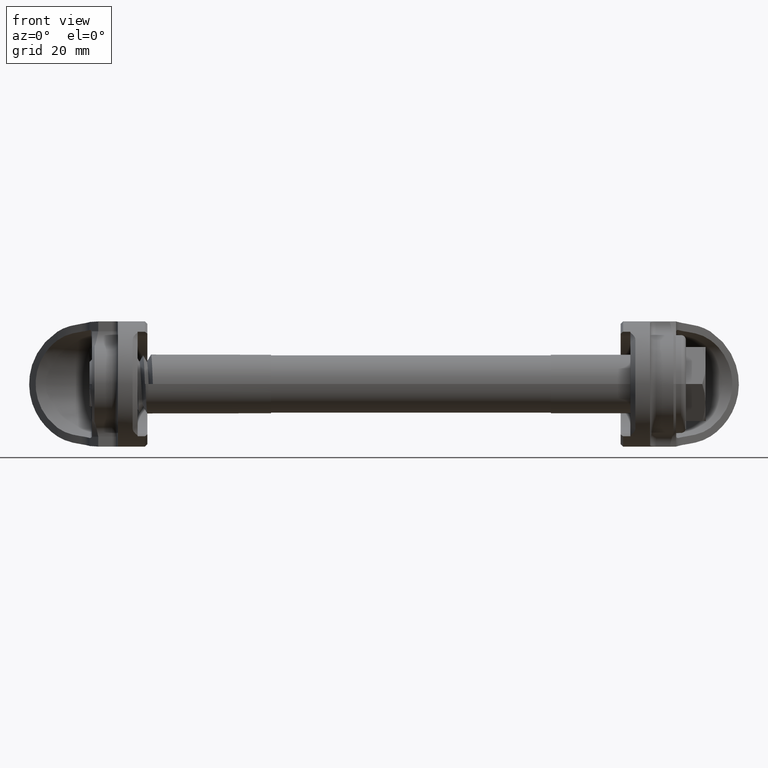
[diagram: clean part render]
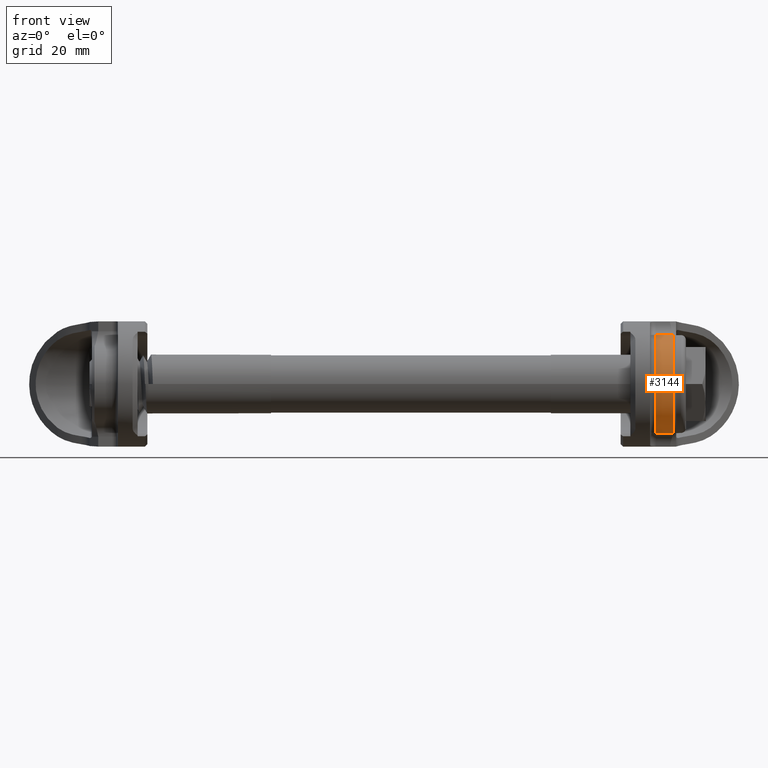
[diagram: same view with one face highlighted and labeled with its STEP entity id]
A machine part, front view. The second image highlights one B-rep face of the part: STEP entity #3144.
In plain terms, the highlighted cylindrical surface (partial cylindrical patch) has radius 10.5 mm, axis along (1, 0, 0).
Its self-contained STEP definition (entity closure, byte-faithful):
#41 = LINE ( 'NONE', #4312, #2883 ) ;
#180 = CARTESIAN_POINT ( 'NONE',  ( 10.74243408912959400, -3.447186338017333500, 9.918009192927106800 ) ) ;
#246 = CYLINDRICAL_SURFACE ( 'NONE', #5355, 10.49999999999999800 ) ;
#270 = FACE_OUTER_BOUND ( 'NONE', #2919, .T. ) ;
#352 = DIRECTION ( 'NONE',  ( -1.000000000000000000, -0.0000000000000000000, -0.0000000000000000000 ) ) ;
#372 = ORIENTED_EDGE ( 'NONE', *, *, #3410, .T. ) ;
#376 = LINE ( 'NONE', #4740, #446 ) ;
#446 = VECTOR ( 'NONE', #3868, 1000.000000000000000 ) ;
#518 = EDGE_CURVE ( 'NONE', #3356, #1215, #1852, .T. ) ;
#610 = CARTESIAN_POINT ( 'NONE',  ( 10.74243408912959600, -8.557028004780100600, -6.085003839391467800 ) ) ;
#709 = CIRCLE ( 'NONE', #4172, 10.49999999999999800 ) ;
#721 = EDGE_CURVE ( 'NONE', #986, #1077, #709, .T. ) ;
#955 = CARTESIAN_POINT ( 'NONE',  ( 10.74243408912959200, -10.33971421894304800, -2.110438373926082800 ) ) ;
#986 = VERTEX_POINT ( 'NONE', #2572 ) ;
#1077 = VERTEX_POINT ( 'NONE', #2967 ) ;
#1215 = VERTEX_POINT ( 'NONE', #1908 ) ;
#1317 = B_SPLINE_CURVE_WITH_KNOTS ( 'NONE', 3,
 ( #3625, #5477, #5404, #3604, #4010, #610 ),
 .UNSPECIFIED., .F., .F.,
 ( 4, 2, 4 ),
 ( 0.0000000000000000000, 0.4999999999999998900, 1.000000000000000000 ),
 .UNSPECIFIED. ) ;
#1852 = B_SPLINE_CURVE_WITH_KNOTS ( 'NONE', 3,
 ( #4839, #2325, #3142, #4007 ),
 .UNSPECIFIED., .F., .F.,
 ( 4, 4 ),
 ( 0.0000000000000000000, 1.000000000000000000 ),
 .UNSPECIFIED. ) ;
#1908 = CARTESIAN_POINT ( 'NONE',  ( 10.74243408912959400, -10.02633039180624900, -3.118124255757268600 ) ) ;
#1991 = DIRECTION ( 'NONE',  ( 1.000000000000000000, -0.0000000000000000000, -0.0000000000000000000 ) ) ;
#2062 = DIRECTION ( 'NONE',  ( 0.0000000000000000000, 0.0000000000000000000, 1.000000000000000000 ) ) ;
#2177 = ORIENTED_EDGE ( 'NONE', *, *, #2277, .T. ) ;
#2218 = CARTESIAN_POINT ( 'NONE',  ( 7.142999999999999800, 0.0000000000000000000, 0.0000000000000000000 ) ) ;
#2258 = VERTEX_POINT ( 'NONE', #5050 ) ;
#2277 = EDGE_CURVE ( 'NONE', #3166, #986, #376, .T. ) ;
#2325 = CARTESIAN_POINT ( 'NONE',  ( 10.74243408912959200, -9.199265335679630300, -5.181858505178245100 ) ) ;
#2569 = B_SPLINE_CURVE_WITH_KNOTS ( 'NONE', 3,
 ( #4697, #955, #5433, #4723 ),
 .UNSPECIFIED., .F., .F.,
 ( 4, 4 ),
 ( 0.0000000000000000000, 1.000000000000000000 ),
 .UNSPECIFIED. ) ;
#2572 = CARTESIAN_POINT ( 'NONE',  ( 7.142999999999999800, -3.447186338017333500, 9.918009192927108600 ) ) ;
#2634 = VERTEX_POINT ( 'NONE', #2703 ) ;
#2703 = CARTESIAN_POINT ( 'NONE',  ( 10.74243408912959400, -10.49999999999997000, 1.768945925690969600E-015 ) ) ;
#2720 = ORIENTED_EDGE ( 'NONE', *, *, #518, .T. ) ;
#2749 = CARTESIAN_POINT ( 'NONE',  ( 10.74243408912959600, -8.557028004780100600, -6.085003839391467800 ) ) ;
#2883 = VECTOR ( 'NONE', #4574, 1000.000000000000000 ) ;
#2910 = CARTESIAN_POINT ( 'NONE',  ( 10.74243408912959400, 0.0000000000000000000, 0.0000000000000000000 ) ) ;
#2919 = EDGE_LOOP ( 'NONE', ( #2720, #372, #5447, #2177, #2984, #4443, #5105 ) ) ;
#2967 = CARTESIAN_POINT ( 'NONE',  ( 7.142999999999999800, -3.447186338017332200, -9.918009192927108600 ) ) ;
#2984 = ORIENTED_EDGE ( 'NONE', *, *, #721, .T. ) ;
#3142 = CARTESIAN_POINT ( 'NONE',  ( 10.74243408912959200, -9.697230221568773300, -4.176346048140432600 ) ) ;
#3144 = ADVANCED_FACE ( 'NONE', ( #270 ), #246, .T. ) ;
#3166 = VERTEX_POINT ( 'NONE', #180 ) ;
#3340 = DIRECTION ( 'NONE',  ( 0.0000000000000000000, 0.0000000000000000000, 1.000000000000000000 ) ) ;
#3356 = VERTEX_POINT ( 'NONE', #2749 ) ;
#3410 = EDGE_CURVE ( 'NONE', #1215, #2634, #2569, .T. ) ;
#3557 = EDGE_CURVE ( 'NONE', #2258, #3356, #1317, .T. ) ;
#3570 = CARTESIAN_POINT ( 'NONE',  ( -25.79798059933091300, 0.0000000000000000000, 0.0000000000000000000 ) ) ;
#3604 = CARTESIAN_POINT ( 'NONE',  ( 10.74243408912958700, -7.166008403126388000, -7.750387965620342700 ) ) ;
#3625 = CARTESIAN_POINT ( 'NONE',  ( 10.74243408912959400, -3.447186338017332200, -9.918009192927112100 ) ) ;
#3868 = DIRECTION ( 'NONE',  ( -1.000000000000000000, 0.0000000000000000000, 0.0000000000000000000 ) ) ;
#3985 = EDGE_CURVE ( 'NONE', #1077, #2258, #41, .T. ) ;
#4007 = CARTESIAN_POINT ( 'NONE',  ( 10.74243408912959400, -10.02633039180624900, -3.118124255757268600 ) ) ;
#4010 = CARTESIAN_POINT ( 'NONE',  ( 10.74243408912958800, -7.930125856225789200, -6.966584095216958000 ) ) ;
#4172 = AXIS2_PLACEMENT_3D ( 'NONE', #2218, #1991, #2062 ) ;
#4312 = CARTESIAN_POINT ( 'NONE',  ( -25.79798059933091300, -3.447186338017332200, -9.918009192927108600 ) ) ;
#4324 = EDGE_CURVE ( 'NONE', #2634, #3166, #5295, .T. ) ;
#4443 = ORIENTED_EDGE ( 'NONE', *, *, #3985, .T. ) ;
#4574 = DIRECTION ( 'NONE',  ( 1.000000000000000000, -0.0000000000000000000, -0.0000000000000000000 ) ) ;
#4697 = CARTESIAN_POINT ( 'NONE',  ( 10.74243408912959400, -10.02633039180624900, -3.118124255757268600 ) ) ;
#4723 = CARTESIAN_POINT ( 'NONE',  ( 10.74243408912959400, -10.49999999999997000, 1.768945925690969600E-015 ) ) ;
#4740 = CARTESIAN_POINT ( 'NONE',  ( -25.79798059933091300, -3.447186338017333500, 9.918009192927108600 ) ) ;
#4834 = DIRECTION ( 'NONE',  ( 0.0000000000000000000, 0.0000000000000000000, -1.000000000000000000 ) ) ;
#4839 = CARTESIAN_POINT ( 'NONE',  ( 10.74243408912959600, -8.557028004780100600, -6.085003839391467800 ) ) ;
#5050 = CARTESIAN_POINT ( 'NONE',  ( 10.74243408912959400, -3.447186338017332200, -9.918009192927112100 ) ) ;
#5105 = ORIENTED_EDGE ( 'NONE', *, *, #3557, .T. ) ;
#5204 = DIRECTION ( 'NONE',  ( 1.000000000000000000, -0.0000000000000000000, -0.0000000000000000000 ) ) ;
#5287 = AXIS2_PLACEMENT_3D ( 'NONE', #2910, #352, #3340 ) ;
#5295 = CIRCLE ( 'NONE', #5287, 10.49999999999999600 ) ;
#5355 = AXIS2_PLACEMENT_3D ( 'NONE', #3570, #5204, #4834 ) ;
#5404 = CARTESIAN_POINT ( 'NONE',  ( 10.74243408912959600, -5.435304704162843100, -9.048627123725234300 ) ) ;
#5433 = CARTESIAN_POINT ( 'NONE',  ( 10.74243408912959200, -10.49999999999999800, -1.055291551919561800 ) ) ;
#5447 = ORIENTED_EDGE ( 'NONE', *, *, #4324, .T. ) ;
#5477 = CARTESIAN_POINT ( 'NONE',  ( 10.74243408912959200, -4.468980479236956100, -9.562865863720446700 ) ) ;